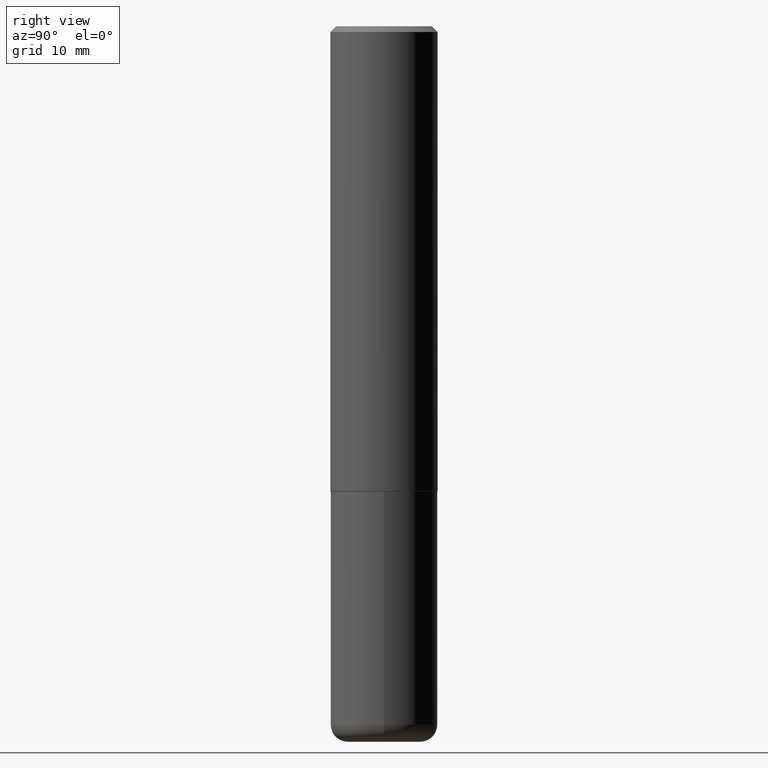
[diagram: clean part render]
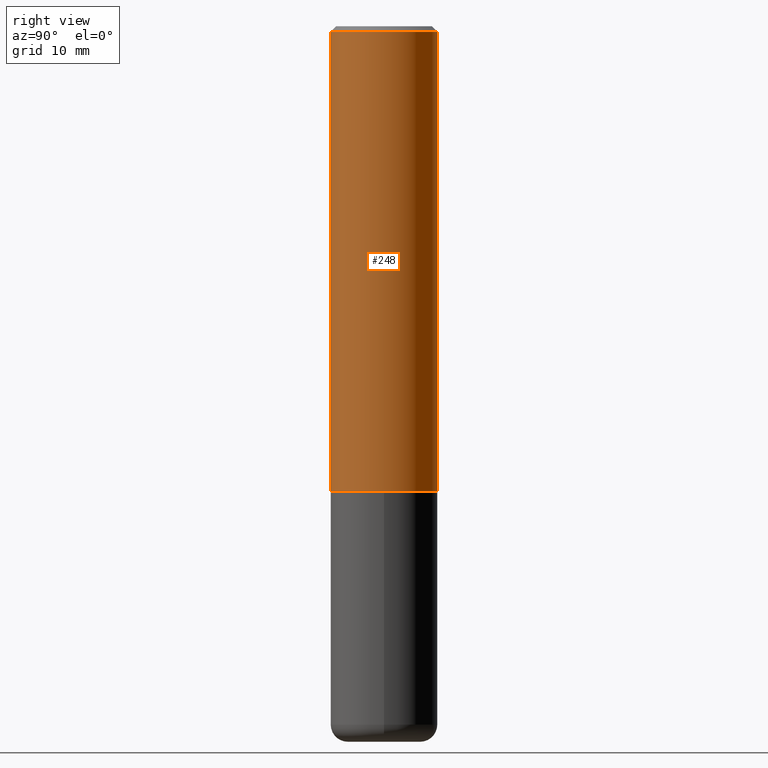
[diagram: same view with one face highlighted and labeled with its STEP entity id]
A machine part, right view. The second image highlights one B-rep face of the part: STEP entity #248.
In plain terms, the highlighted cylindrical surface (partial cylindrical patch) has radius 4.7625 mm, axis along (-0, 0, 1).
Its self-contained STEP definition (entity closure, byte-faithful):
#1 = DIRECTION ( 'NONE',  ( -2.445663447522104049E-29, 3.491202601370310888E-15, 1.000000000000000000 ) ) ;
#15 = DIRECTION ( 'NONE',  ( -6.982962677686266711E-15, -1.000000000000000000, 3.483106191921935949E-15 ) ) ;
#19 = ORIENTED_EDGE ( 'NONE', *, *, #87, .T. ) ;
#30 = CARTESIAN_POINT ( 'NONE',  ( -1.286343374582161379E-15, -0.1875000000000000555, -0.01999999999999938979 ) ) ;
#32 = CARTESIAN_POINT ( 'NONE',  ( -1.309305502066136748E-15, -0.1875000000000058842, -1.623999999999999666 ) ) ;
#43 = AXIS2_PLACEMENT_3D ( 'NONE', #332, #363, #15 ) ;
#49 = VERTEX_POINT ( 'NONE', #32 ) ;
#69 = EDGE_CURVE ( 'NONE', #182, #411, #293, .T. ) ;
#85 = ORIENTED_EDGE ( 'NONE', *, *, #412, .T. ) ;
#87 = EDGE_CURVE ( 'NONE', #90, #411, #126, .T. ) ;
#90 = VERTEX_POINT ( 'NONE', #129 ) ;
#100 = CIRCLE ( 'NONE', #355, 0.1875000000000002220 ) ;
#120 = CARTESIAN_POINT ( 'NONE',  ( 3.971757438775897765E-29, -5.669713024625386356E-15, -1.624000000000000110 ) ) ;
#126 = LINE ( 'NONE', #249, #265 ) ;
#127 = DIRECTION ( 'NONE',  ( -2.445663447522104049E-29, 3.491202601370311283E-15, 1.000000000000000000 ) ) ;
#129 = CARTESIAN_POINT ( 'NONE',  ( 1.332267629550208753E-15, 0.1874999999999945599, -1.624000000000000776 ) ) ;
#144 = DIRECTION ( 'NONE',  ( -2.445663447522104049E-29, 3.491202601370310888E-15, 1.000000000000000000 ) ) ;
#153 = DIRECTION ( 'NONE',  ( -2.445663447522104049E-29, 3.491202601370311283E-15, 1.000000000000000000 ) ) ;
#182 = VERTEX_POINT ( 'NONE', #30 ) ;
#243 = LINE ( 'NONE', #253, #266 ) ;
#246 = DIRECTION ( 'NONE',  ( -6.982962677686265922E-15, -1.000000000000000000, 2.913971193241877216E-15 ) ) ;
#248 = ADVANCED_FACE ( 'NONE', ( #354 ), #283, .T. ) ;
#249 = CARTESIAN_POINT ( 'NONE',  ( 1.332267629550188440E-15, 0.1875000000000001110, -6.546004877569338093E-16 ) ) ;
#253 = CARTESIAN_POINT ( 'NONE',  ( -1.309305502066175797E-15, -0.1875000000000001110, 6.546004877569338093E-16 ) ) ;
#254 = DIRECTION ( 'NONE',  ( -6.982962677686266711E-15, -1.000000000000000000, 3.491202601370311677E-15 ) ) ;
#265 = VECTOR ( 'NONE', #1, 39.37007874015748143 ) ;
#266 = VECTOR ( 'NONE', #144, 39.37007874015748143 ) ;
#268 = ORIENTED_EDGE ( 'NONE', *, *, #384, .F. ) ;
#277 = CARTESIAN_POINT ( 'NONE',  ( 1.309305502066175205E-15, 0.1874999999999999167, -0.02000000000000069431 ) ) ;
#283 = CYLINDRICAL_SURFACE ( 'NONE', #296, 0.1875000000000001110 ) ;
#293 = CIRCLE ( 'NONE', #43, 0.1874999999999999722 ) ;
#296 = AXIS2_PLACEMENT_3D ( 'NONE', #417, #127, #254 ) ;
#332 = CARTESIAN_POINT ( 'NONE',  ( 4.891326895044218398E-31, -6.982405202740636519E-17, -0.02000000000000004205 ) ) ;
#337 = ORIENTED_EDGE ( 'NONE', *, *, #69, .F. ) ;
#354 = FACE_OUTER_BOUND ( 'NONE', #401, .T. ) ;
#355 = AXIS2_PLACEMENT_3D ( 'NONE', #120, #153, #246 ) ;
#363 = DIRECTION ( 'NONE',  ( -2.445663447522104049E-29, 3.491202601370311283E-15, 1.000000000000000000 ) ) ;
#384 = EDGE_CURVE ( 'NONE', #49, #182, #243, .T. ) ;
#401 = EDGE_LOOP ( 'NONE', ( #85, #19, #337, #268 ) ) ;
#411 = VERTEX_POINT ( 'NONE', #277 ) ;
#412 = EDGE_CURVE ( 'NONE', #49, #90, #100, .T. ) ;
#417 = CARTESIAN_POINT ( 'NONE',  ( 0.000000000000000000, 0.000000000000000000, 0.000000000000000000 ) ) ;